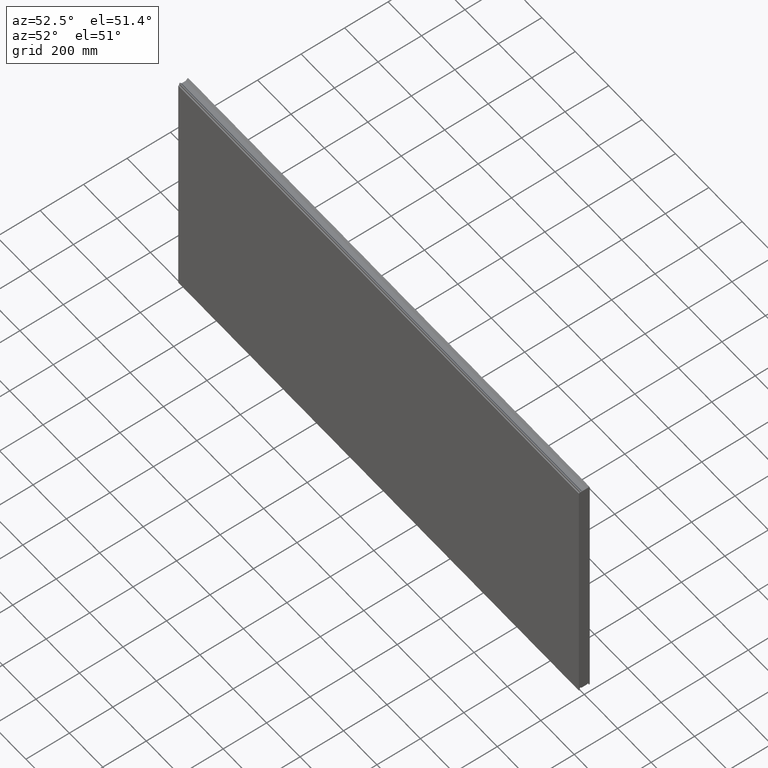
[diagram: clean part render]
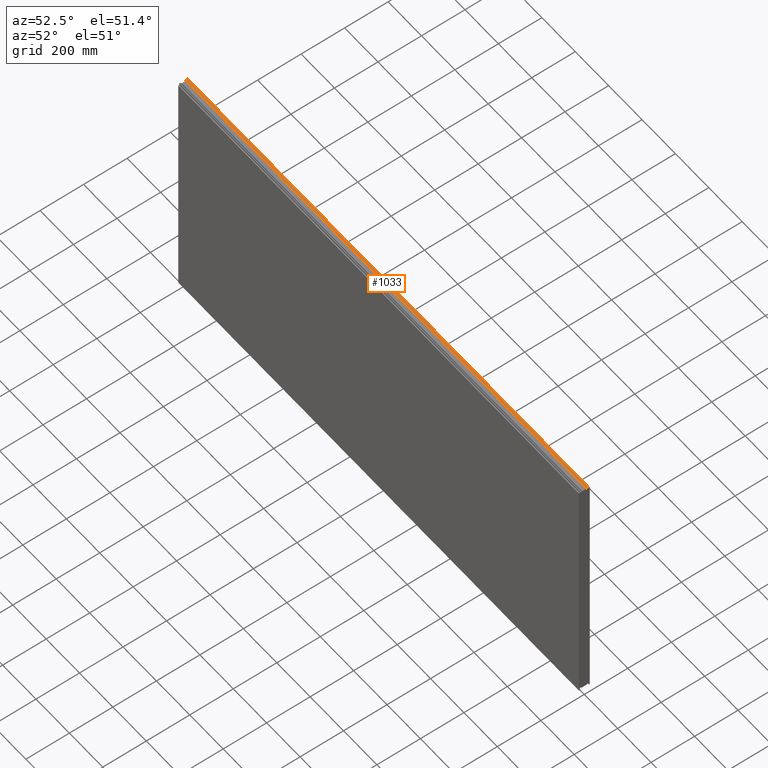
[diagram: same view with one face highlighted and labeled with its STEP entity id]
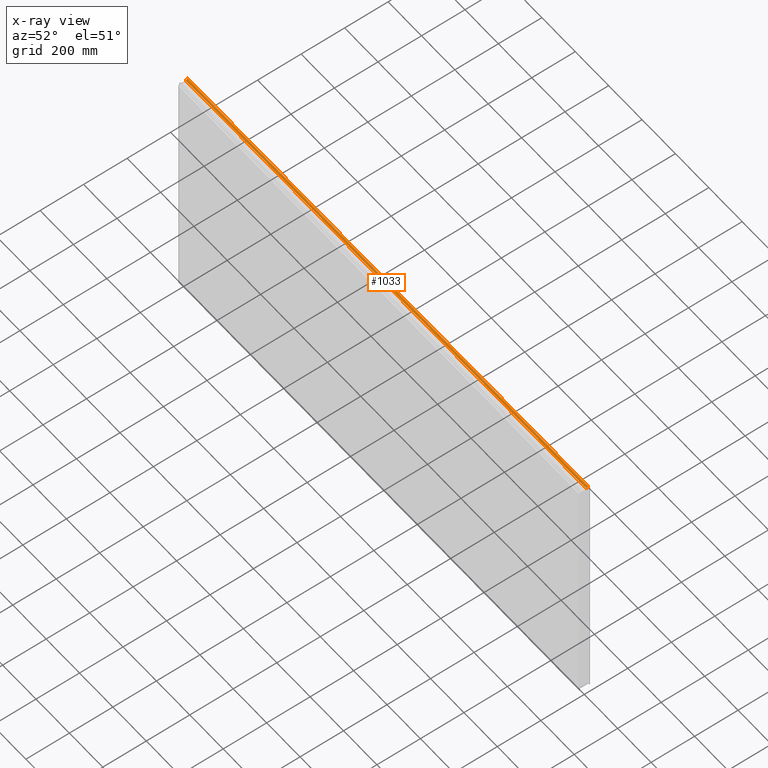
[diagram: x-ray of the same camera — body ghosted, the highlighted face saturated]
A machine part, auxiliary view. The second image highlights one B-rep face of the part: STEP entity #1033.
The next image is the same camera in x-ray: the body ghosted, the highlighted face saturated — about 0% of this face is hidden behind the body in this view.
In plain terms, the highlighted planar face has unit normal (0, -0.7431, 0.6691).
Its self-contained STEP definition (entity closure, byte-faithful):
#80 = ORIENTED_EDGE ( 'NONE', *, *, #1881, .T. ) ;
#89 = DIRECTION ( 'NONE',  ( 0.000000000000000000, -0.6691306063588622344, -0.7431448254773906914 ) ) ;
#246 = LINE ( 'NONE', #1110, #2043 ) ;
#342 = EDGE_CURVE ( 'NONE', #1703, #1278, #1443, .T. ) ;
#366 = PLANE ( 'NONE',  #2210 ) ;
#374 = VECTOR ( 'NONE', #815, 1000.000000000000000 ) ;
#526 = CARTESIAN_POINT ( 'NONE',  ( 1199.999999999999773, 17.01645127953607073, 581.3382612127178390 ) ) ;
#622 = ORIENTED_EDGE ( 'NONE', *, *, #342, .F. ) ;
#688 = DIRECTION ( 'NONE',  ( -1.000000000000000000, -0.000000000000000000, -0.000000000000000000 ) ) ;
#689 = VECTOR ( 'NONE', #2596, 1000.000000000000000 ) ;
#815 = DIRECTION ( 'NONE',  ( 0.000000000000000000, 0.6691306063588622344, 0.7431448254773906914 ) ) ;
#879 = CARTESIAN_POINT ( 'NONE',  ( 1199.999999999999773, 17.01645127953607073, 581.3382612127178390 ) ) ;
#1033 = ADVANCED_FACE ( 'NONE', ( #2418 ), #366, .T. ) ;
#1071 = ORIENTED_EDGE ( 'NONE', *, *, #1887, .T. ) ;
#1110 = CARTESIAN_POINT ( 'NONE',  ( 1199.999999999999773, 9.958849183342193712, 573.5000000000002274 ) ) ;
#1278 = VERTEX_POINT ( 'NONE', #2364 ) ;
#1299 = EDGE_CURVE ( 'NONE', #1941, #1703, #246, .T. ) ;
#1340 = DIRECTION ( 'NONE',  ( 0.000000000000000000, 0.6691306063588622344, 0.7431448254773906914 ) ) ;
#1355 = CARTESIAN_POINT ( 'NONE',  ( 1199.999999999999773, 9.958849183342193712, 573.5000000000002274 ) ) ;
#1443 = LINE ( 'NONE', #2713, #374 ) ;
#1664 = ORIENTED_EDGE ( 'NONE', *, *, #1299, .F. ) ;
#1703 = VERTEX_POINT ( 'NONE', #2139 ) ;
#1779 = VERTEX_POINT ( 'NONE', #879 ) ;
#1881 = EDGE_CURVE ( 'NONE', #1941, #1779, #1976, .T. ) ;
#1887 = EDGE_CURVE ( 'NONE', #1779, #1278, #2180, .T. ) ;
#1941 = VERTEX_POINT ( 'NONE', #1355 ) ;
#1961 = CARTESIAN_POINT ( 'NONE',  ( 1199.999999999999773, 17.01645127953607073, 581.3382612127178390 ) ) ;
#1976 = LINE ( 'NONE', #2014, #2179 ) ;
#1977 = DIRECTION ( 'NONE',  ( 0.000000000000000000, -0.7431448254773906914, 0.6691306063588622344 ) ) ;
#2014 = CARTESIAN_POINT ( 'NONE',  ( 1199.999999999999773, 17.01645127953607073, 581.3382612127178390 ) ) ;
#2043 = VECTOR ( 'NONE', #688, 1000.000000000000000 ) ;
#2139 = CARTESIAN_POINT ( 'NONE',  ( -1200.000000000000227, 9.958849183342193712, 573.5000000000002274 ) ) ;
#2179 = VECTOR ( 'NONE', #1340, 1000.000000000000000 ) ;
#2180 = LINE ( 'NONE', #1961, #689 ) ;
#2210 = AXIS2_PLACEMENT_3D ( 'NONE', #526, #1977, #89 ) ;
#2364 = CARTESIAN_POINT ( 'NONE',  ( -1200.000000000000227, 17.01645127953607073, 581.3382612127178390 ) ) ;
#2418 = FACE_OUTER_BOUND ( 'NONE', #2445, .T. ) ;
#2445 = EDGE_LOOP ( 'NONE', ( #1071, #622, #1664, #80 ) ) ;
#2596 = DIRECTION ( 'NONE',  ( -1.000000000000000000, -0.000000000000000000, -0.000000000000000000 ) ) ;
#2713 = CARTESIAN_POINT ( 'NONE',  ( -1200.000000000000227, 17.01645127953607073, 581.3382612127178390 ) ) ;